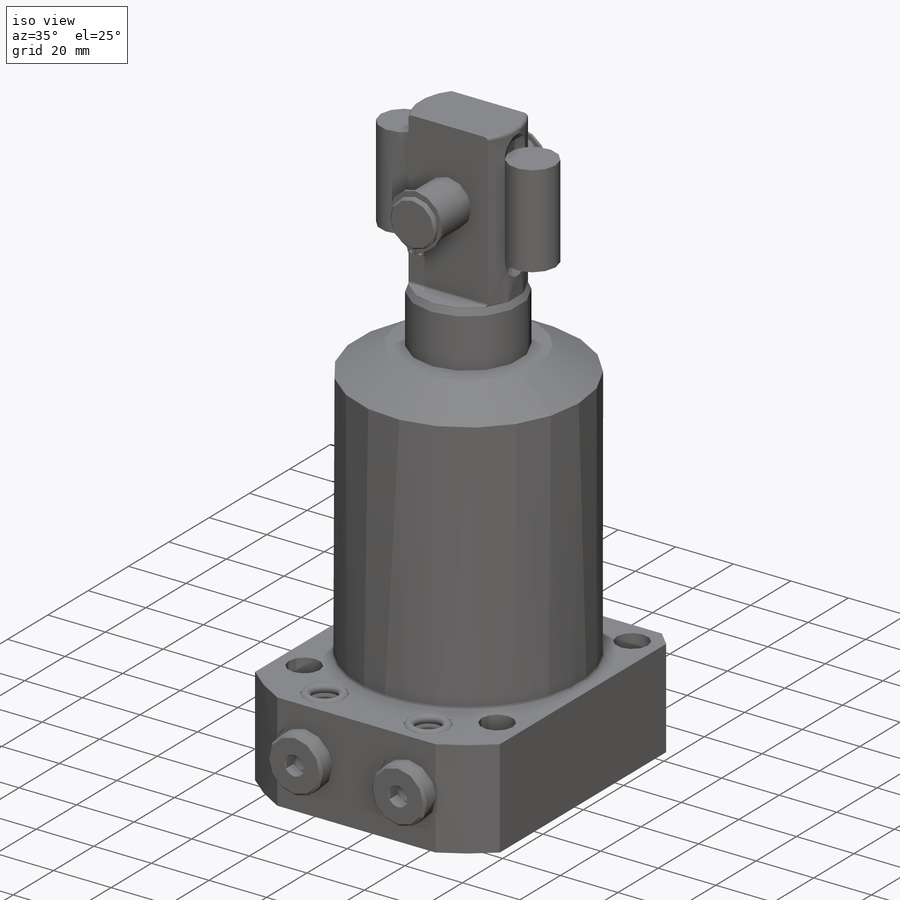
[diagram: iso view]
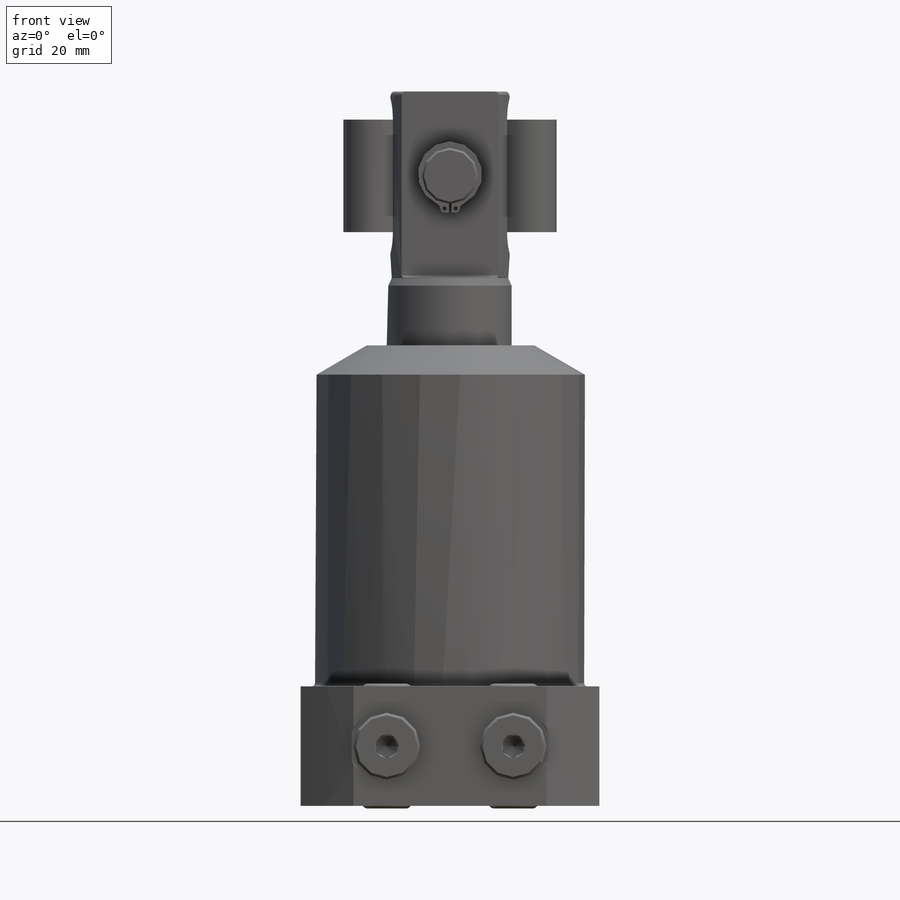
[diagram: front view]
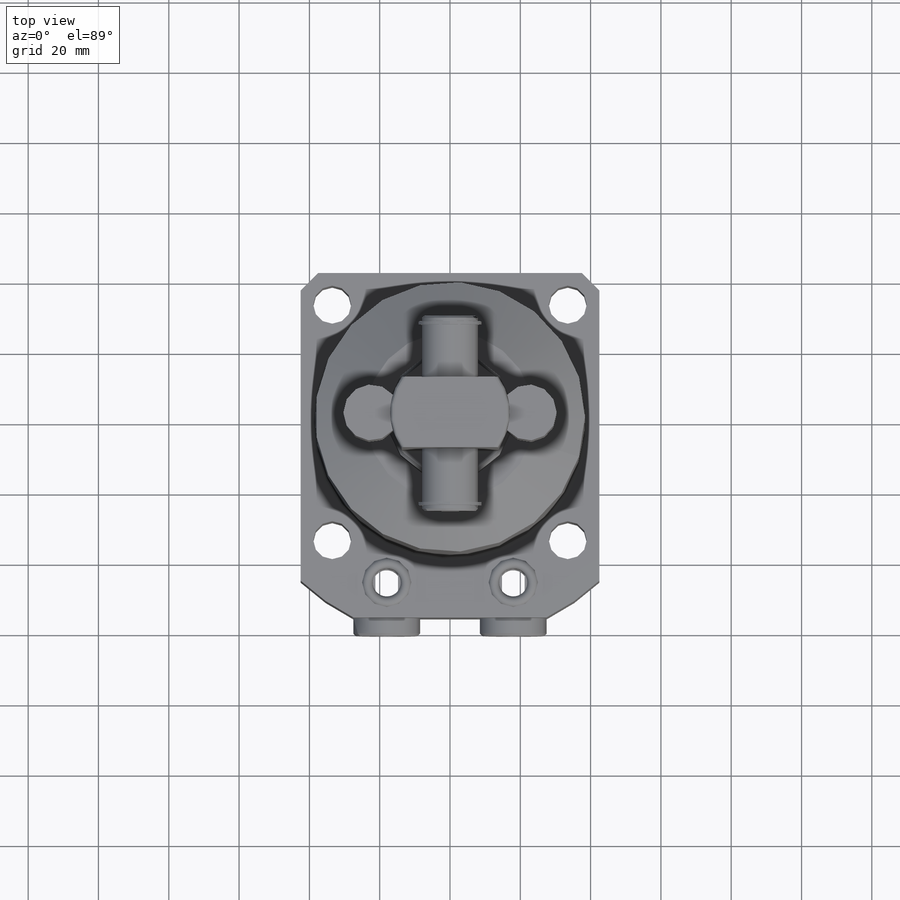
[diagram: top view]
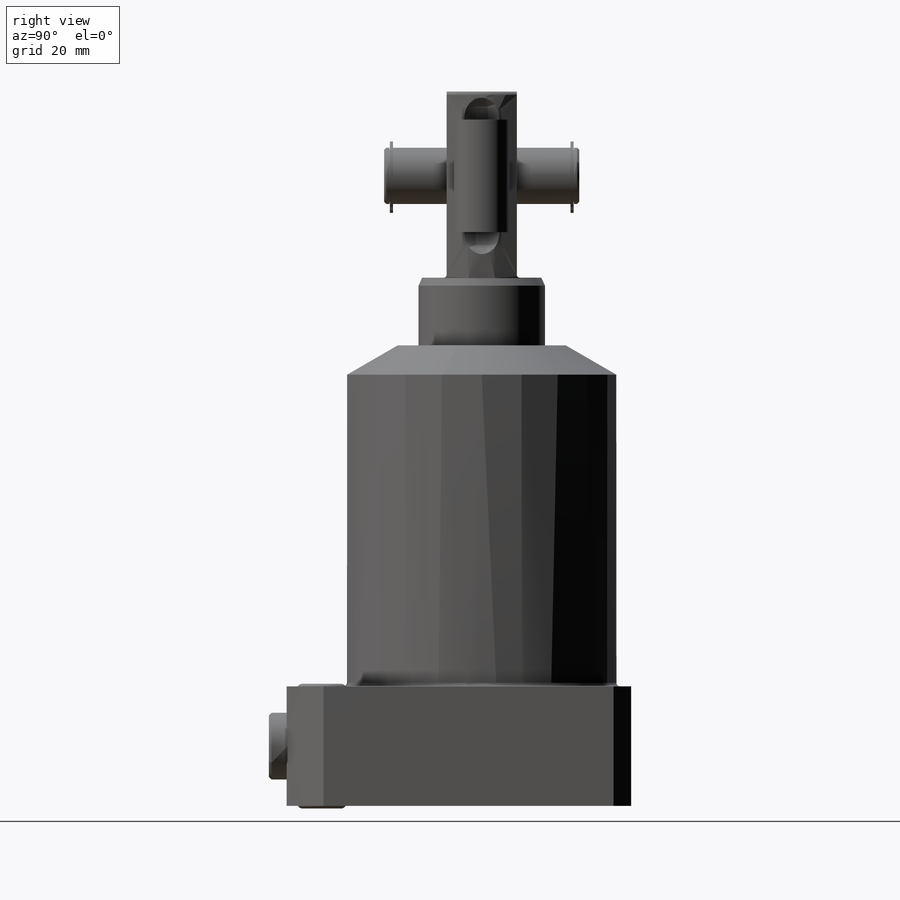
[diagram: right view]
SOLIDWORKS PART (.sldprt)
format: sldprt  version: not decoded by parser v0  size: 779,264 bytes
history: native  units: mm
features: sketch x14, mirror x7, revolve x6, plane x4, cut_extrude x4, cut_revolve x3, material x1, extrude x1, pattern_circular x1, chamfer x1, fillet x1 (+11 scaffold rows collapsed)
feature tree (54):
  scaffold x11  (default folders/planes/origin — collapsed)
  material  "AISI 1020"
  sketch  "Sketch1"  dims[c1.D1=7.75mm c1.D2=36.0mm c1.D3=6.5mm c1.D4=7.87mm c1.D5=61.5mm c1.D6=~0.699461mm c2.D6=25.0deg c2.D7=1.5mm c2.D8=0.75mm c3.D8=45.0deg c3.D9=0.75mm c3.D10=5.065mm c3.D5=110.0mm c4.D5=34.0mm c4.D11=110.75mm c4.D3=34.0mm c4.D4=~2.366202mm c5.D4=25.0deg c6.D4=55.25mm c6.D7=203.25mm]
  revolve  "PLUNGER"  Angle=360deg
  plane  "FLAT_SKTCH_PLN"
  sketch  "Sketch17"  dims[D3=0.8mm D1=53.0mm D2=20.0mm]
  cut_extrude  "FLATS"  Depth=100mm
  sketch  "Sketch22"  dims[c1.D1=24.0mm c1.D2=~0.556414mm c2.D2=45.0deg c2.D3=0.6mm c2.D4=16.0mm c2.D5=1.0mm c2.D6=14.935mm c2.D7=55.5mm c2.D8=50.5mm]
  revolve  "PIVOT_PIN"  Angle=360deg
  sketch  "Sketch23"  dims[c1.D1=15.5mm c1.D3=1.19mm c1.D8=1.19mm c1.D2=0.7mm c2.D3=1.42mm c2.D4=2.8mm c2.D5=2.8mm c2.D6=0.762mm c2.D7=1.14mm c3.D6=2.03mm]
  extrude  "RETAINING_RING"  Depth=0.89mm
  plane  "PIN_CL"
  mirror  "RETAINING_RING-OPP"
  sketch  "Sketch20"  dims[c1.D3=6.35mm c1.D1=14.5mm c1.D2=15.875mm c2.D3=33.0mm c2.D4=7.5mm]
  cut_revolve  "SPRING_SLOT"  Angle=360deg
  mirror  "SPRING_SLOT_OPP"
  sketch  "Sketch24"  dims[D1=15.875mm D2=32.0mm D3=0.03mm]
  revolve  "SPRING"  Angle=360deg
  mirror  "SPRING_OPP"
  sketch  "Sketch6"  dims[c1.D1=76.77mm c1.D2=75.0mm c1.D3=131.0mm c1.D4=123.83mm c1.D5=~24.894312mm c2.D5=30.0deg c2.D6=48.0mm c2.D2=34.0mm c2.D7=15.0mm c3.D7=270.0deg c4.D7=15.0mm]
  revolve  "BODY_REVOLVE"  Angle=360deg
  sketch  "Sketch7"  dims[D1=85.0mm D2=98.0mm D3=42.5mm]
  cut_extrude  "FLANGE_SIDES"  [1 undecoded]
  sketch  "Sketch8"  dims[D1=10.8mm D2=33.5mm D3=33.5mm]
  cut_extrude  "MOUNTING HOLES"  [1 undecoded]
  pattern_circular  "MOUNTING_PATTERN"  Count=4 Angle=360deg
  chamfer  "FLANGE_CHAMFER"  Distance=5mm Angle=45deg
  fillet  "BODY_FILLET"  Radius=1mm
  plane  "FLANGE-PORT_PLANE"  Offset=17mm
  sketch  "Sketch11"  dims[c1.D1=18.0mm c1.D2=0.25mm c1.D3=11.89mm c1.D4=18.72mm c1.D5=21.5mm c1.D6=~1.736649mm c2.D6=45.0deg c2.D7=0.705mm]
  cut_revolve  "PORT SPOT FACE"  Angle=360deg
  plane  "MANIFOLD_PORT_PLANE"  Offset=45.5mm
  sketch  "Sketch13"  dims[c1.D1=18.0mm c1.D2=8.75mm c1.D3=12.0mm c1.D4=2.25mm c1.D5=14.0mm c1.D6=~1.397068mm c2.D6=45.0deg c2.D7=0.75mm]
  cut_revolve  "BOTTOM_MANIFOLD_PORT"  Angle=360deg
  sketch  "Sketch14"  dims[c1.D1=8.25mm c1.D2=2.5028mm c1.D3=~1.886782mm c2.D3=31.0deg c2.D4=6.0mm c2.D5=5.3mm c2.D6=19.0mm c2.D7=~1.074619mm c3.D7=59.0deg c4.D7=~1.253686mm c5.D7=45.0deg c5.D8=0.75mm c5.D9=~0.70036mm c6.D9=45.0deg c6.D10=0.4mm c6.D3=~2.773157mm c7.D3=59.0deg c7.D11=0.001mm c7.D12=~0.999648mm]
  revolve  "BSPP_PLUGHEAD"  Angle=360deg
  sketch  "Sketch15"  dims[D1=6.0mm]
  cut_extrude  "BSPP_PLUG_HEX"  Depth=4.06mm
  mirror  "MANIFOLD_TOP_MIRROR"
  mirror  "BSPP-MANIFOLD_MIRROR"
  sketch  "Sketch16"  dims[c1.D1=3.0mm c1.D3=3.0mm c1.D2=11.0mm c2.D3=0.75mm]
  revolve  "MANIFOLD_O-RING"  Angle=360deg
  mirror  "MANIFOLD_O-RING_MIRROR"
  mirror  "MANIFOLD_O-RING_MIRROR_TOP"
decode coverage: 29 of 38 modeling features carry decoded parameters
note: ~ marks probable driven/reference dimensions
note: 2 parameter values undecoded
note: suppression state not decoded; provenance and decode notes live in map.json
